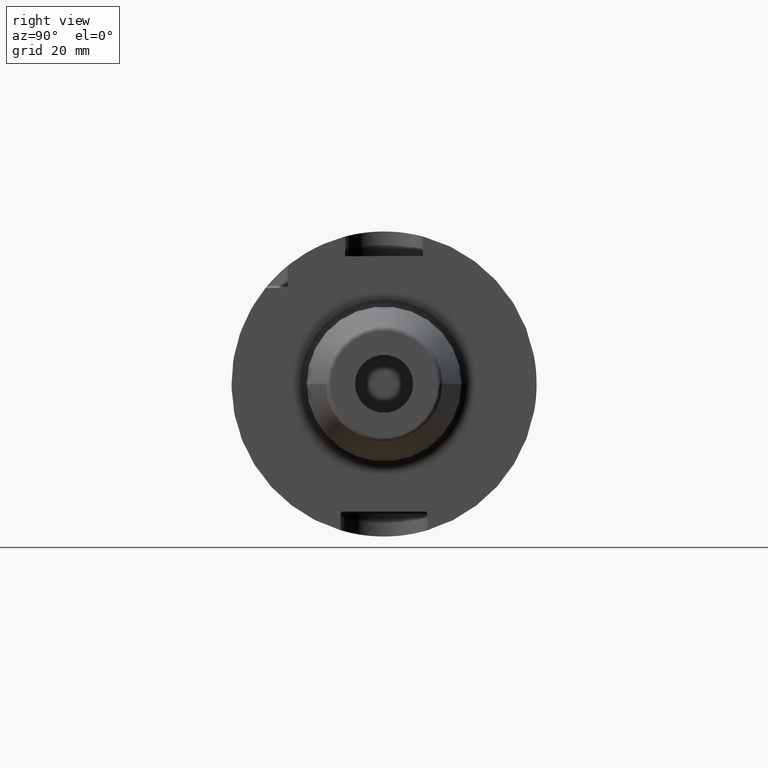
[diagram: clean part render]
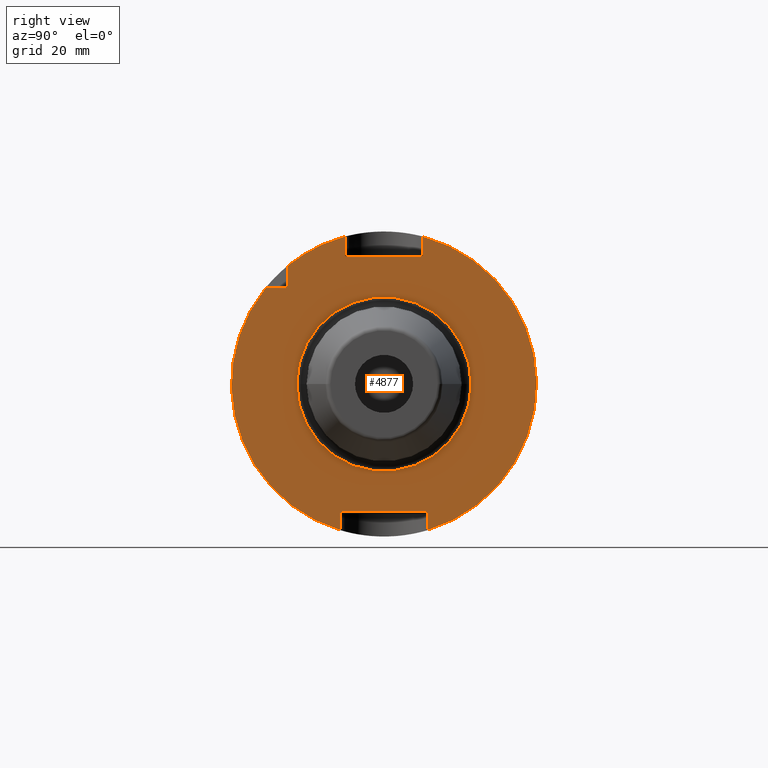
[diagram: same view with one face highlighted and labeled with its STEP entity id]
A machine part, right view. The second image highlights one B-rep face of the part: STEP entity #4877.
In plain terms, the highlighted planar face has unit normal (1, 0, 0).
Its self-contained STEP definition (entity closure, byte-faithful):
#1343=DIRECTION('',(0.E0,7.071067811865E-1,-7.071067811866E-1));
#1344=VECTOR('',#1343,5.656854249492E-1);
#1345=CARTESIAN_POINT('',(2.6E1,8.6175E0,-2.64E1));
#1346=LINE('',#1345,#1344);
#1565=CARTESIAN_POINT('',(2.6E1,0.E0,0.E0));
#1566=DIRECTION('',(1.E0,0.E0,0.E0));
#1567=DIRECTION('',(0.E0,2.862698412698E-1,-9.581490374568E-1));
#1568=AXIS2_PLACEMENT_3D('',#1565,#1566,#1567);
#1574=CARTESIAN_POINT('',(2.6E1,0.E0,0.E0));
#1575=DIRECTION('',(1.E0,0.E0,0.E0));
#1576=DIRECTION('',(0.E0,-7.764663384879E-1,6.301587301587E-1));
#1577=AXIS2_PLACEMENT_3D('',#1574,#1575,#1576);
#1583=CARTESIAN_POINT('',(2.6E1,0.E0,0.E0));
#1584=DIRECTION('',(1.E0,0.E0,0.E0));
#1585=DIRECTION('',(0.E0,-2.545238095238E-1,9.670665077364E-1));
#1586=AXIS2_PLACEMENT_3D('',#1583,#1584,#1585);
#1676=DIRECTION('',(0.E0,1.E0,0.E0));
#1677=VECTOR('',#1676,4.208689662367E0);
#1678=CARTESIAN_POINT('',(2.6E1,-2.445868966237E1,1.985E1));
#1679=LINE('',#1678,#1677);
#1680=DIRECTION('',(0.E0,0.E0,-1.E0));
#1681=VECTOR('',#1680,4.208689662367E0);
#1682=CARTESIAN_POINT('',(2.6E1,-1.985E1,2.445868966237E1));
#1683=LINE('',#1682,#1681);
#1684=DIRECTION('',(0.E0,0.E0,-1.E0));
#1685=VECTOR('',#1684,4.062594993697E0);
#1686=CARTESIAN_POINT('',(2.6E1,-8.0175E0,3.046259499370E1));
#1687=LINE('',#1686,#1685);
#1688=DIRECTION('',(0.E0,1.E0,0.E0));
#1689=VECTOR('',#1688,1.6035E1);
#1690=CARTESIAN_POINT('',(2.6E1,-8.0175E0,2.64E1));
#1691=LINE('',#1690,#1689);
#1692=DIRECTION('',(0.E0,0.E0,-1.E0));
#1693=VECTOR('',#1692,4.062594993697E0);
#1694=CARTESIAN_POINT('',(2.6E1,8.0175E0,3.046259499370E1));
#1695=LINE('',#1694,#1693);
#1696=DIRECTION('',(0.E0,0.E0,1.E0));
#1697=VECTOR('',#1696,3.381694679888E0);
#1698=CARTESIAN_POINT('',(2.6E1,9.0175E0,-3.018169467989E1));
#1699=LINE('',#1698,#1697);
#1700=DIRECTION('',(0.E0,-1.E0,0.E0));
#1701=VECTOR('',#1700,1.7235E1);
#1702=CARTESIAN_POINT('',(2.6E1,8.6175E0,-2.64E1));
#1703=LINE('',#1702,#1701);
#1704=DIRECTION('',(0.E0,0.E0,1.E0));
#1705=VECTOR('',#1704,3.381694679888E0);
#1706=CARTESIAN_POINT('',(2.6E1,-9.0175E0,-3.018169467989E1));
#1707=LINE('',#1706,#1705);
#1708=CARTESIAN_POINT('',(2.6E1,0.E0,0.E0));
#1709=DIRECTION('',(1.E0,0.E0,0.E0));
#1710=DIRECTION('',(0.E0,-1.E0,0.E0));
#1711=AXIS2_PLACEMENT_3D('',#1708,#1709,#1710);
#1713=CARTESIAN_POINT('',(2.6E1,0.E0,0.E0));
#1714=DIRECTION('',(1.E0,0.E0,0.E0));
#1715=DIRECTION('',(0.E0,1.E0,0.E0));
#1716=AXIS2_PLACEMENT_3D('',#1713,#1714,#1715);
#1737=DIRECTION('',(0.E0,-7.071067811865E-1,-7.071067811865E-1));
#1738=VECTOR('',#1737,5.656854249492E-1);
#1739=CARTESIAN_POINT('',(2.6E1,-1.985E1,2.025E1));
#1740=LINE('',#1739,#1738);
#1857=DIRECTION('',(0.E0,7.071067811865E-1,7.071067811865E-1));
#1858=VECTOR('',#1857,5.656854249492E-1);
#1859=CARTESIAN_POINT('',(2.6E1,-9.0175E0,-2.68E1));
#1860=LINE('',#1859,#1858);
#2917=CARTESIAN_POINT('',(2.6E1,8.6175E0,-2.64E1));
#2918=CARTESIAN_POINT('',(2.6E1,9.0175E0,-2.68E1));
#2919=VERTEX_POINT('',#2917);
#2920=VERTEX_POINT('',#2918);
#2921=CARTESIAN_POINT('',(2.6E1,-9.0175E0,-2.68E1));
#2922=CARTESIAN_POINT('',(2.6E1,-8.6175E0,-2.64E1));
#2923=VERTEX_POINT('',#2921);
#2924=VERTEX_POINT('',#2922);
#2939=CARTESIAN_POINT('',(2.6E1,-1.985E1,2.025E1));
#2940=CARTESIAN_POINT('',(2.6E1,-2.025E1,1.985E1));
#2941=VERTEX_POINT('',#2939);
#2942=VERTEX_POINT('',#2940);
#2958=CARTESIAN_POINT('',(2.6E1,-8.0175E0,2.64E1));
#2960=VERTEX_POINT('',#2958);
#2961=CARTESIAN_POINT('',(2.6E1,8.0175E0,2.64E1));
#2963=VERTEX_POINT('',#2961);
#3021=CARTESIAN_POINT('',(2.6E1,9.0175E0,-3.018169467989E1));
#3022=CARTESIAN_POINT('',(2.6E1,8.0175E0,3.046259499370E1));
#3023=VERTEX_POINT('',#3021);
#3024=VERTEX_POINT('',#3022);
#3028=CARTESIAN_POINT('',(2.6E1,-2.445868966237E1,1.985E1));
#3030=VERTEX_POINT('',#3028);
#3032=CARTESIAN_POINT('',(2.6E1,-1.985E1,2.445868966237E1));
#3034=VERTEX_POINT('',#3032);
#3052=CARTESIAN_POINT('',(2.6E1,-8.0175E0,3.046259499370E1));
#3053=VERTEX_POINT('',#3052);
#3054=CARTESIAN_POINT('',(2.6E1,-9.0175E0,-3.018169467989E1));
#3055=VERTEX_POINT('',#3054);
#3068=CARTESIAN_POINT('',(2.6E1,-1.8E1,0.E0));
#3069=CARTESIAN_POINT('',(2.6E1,1.8E1,0.E0));
#3070=VERTEX_POINT('',#3068);
#3071=VERTEX_POINT('',#3069);
#4845=CARTESIAN_POINT('',(2.6E1,0.E0,0.E0));
#4846=DIRECTION('',(1.E0,0.E0,0.E0));
#4847=DIRECTION('',(0.E0,-1.E0,0.E0));
#4848=AXIS2_PLACEMENT_3D('',#4845,#4846,#4847);
#4849=PLANE('',#4848);
#4851=ORIENTED_EDGE('',*,*,#4850,.T.);
#4853=ORIENTED_EDGE('',*,*,#4852,.F.);
#4855=ORIENTED_EDGE('',*,*,#4854,.F.);
#4856=ORIENTED_EDGE('',*,*,#4815,.F.);
#4857=ORIENTED_EDGE('',*,*,#4686,.T.);
#4858=ORIENTED_EDGE('',*,*,#4653,.T.);
#4859=ORIENTED_EDGE('',*,*,#4748,.F.);
#4860=ORIENTED_EDGE('',*,*,#4781,.F.);
#4861=ORIENTED_EDGE('',*,*,#4487,.T.);
#4862=ORIENTED_EDGE('',*,*,#4528,.F.);
#4863=ORIENTED_EDGE('',*,*,#4606,.T.);
#4865=ORIENTED_EDGE('',*,*,#4864,.F.);
#4867=ORIENTED_EDGE('',*,*,#4866,.F.);
#4868=ORIENTED_EDGE('',*,*,#4796,.F.);
#4869=EDGE_LOOP('',(#4851,#4853,#4855,#4856,#4857,#4858,#4859,#4860,#4861,#4862,
#4863,#4865,#4867,#4868));
#4870=FACE_OUTER_BOUND('',#4869,.F.);
#4872=ORIENTED_EDGE('',*,*,#4871,.T.);
#4874=ORIENTED_EDGE('',*,*,#4873,.T.);
#4875=EDGE_LOOP('',(#4872,#4874));
#4876=FACE_BOUND('',#4875,.F.);
#4877=ADVANCED_FACE('',(#4870,#4876),#4849,.T.);
#1569=CIRCLE('',#1568,3.15E1);
#1578=CIRCLE('',#1577,3.15E1);
#1587=CIRCLE('',#1586,3.15E1);
#1712=CIRCLE('',#1711,1.8E1);
#1717=CIRCLE('',#1716,1.8E1);
#4487=EDGE_CURVE('',#3023,#2920,#1699,.T.);
#4528=EDGE_CURVE('',#2919,#2920,#1346,.T.);
#4606=EDGE_CURVE('',#2919,#2924,#1703,.T.);
#4653=EDGE_CURVE('',#2960,#2963,#1691,.T.);
#4686=EDGE_CURVE('',#3053,#2960,#1687,.T.);
#4748=EDGE_CURVE('',#3024,#2963,#1695,.T.);
#4781=EDGE_CURVE('',#3023,#3024,#1569,.T.);
#4796=EDGE_CURVE('',#3030,#3055,#1578,.T.);
#4815=EDGE_CURVE('',#3053,#3034,#1587,.T.);
#4850=EDGE_CURVE('',#3030,#2942,#1679,.T.);
#4852=EDGE_CURVE('',#2941,#2942,#1740,.T.);
#4854=EDGE_CURVE('',#3034,#2941,#1683,.T.);
#4864=EDGE_CURVE('',#2923,#2924,#1860,.T.);
#4866=EDGE_CURVE('',#3055,#2923,#1707,.T.);
#4871=EDGE_CURVE('',#3070,#3071,#1712,.T.);
#4873=EDGE_CURVE('',#3071,#3070,#1717,.T.);